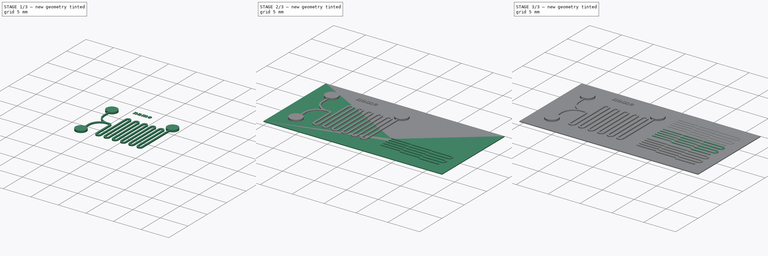
[diagram: build sequence overview — one tinted view per stage of 3, left to right]
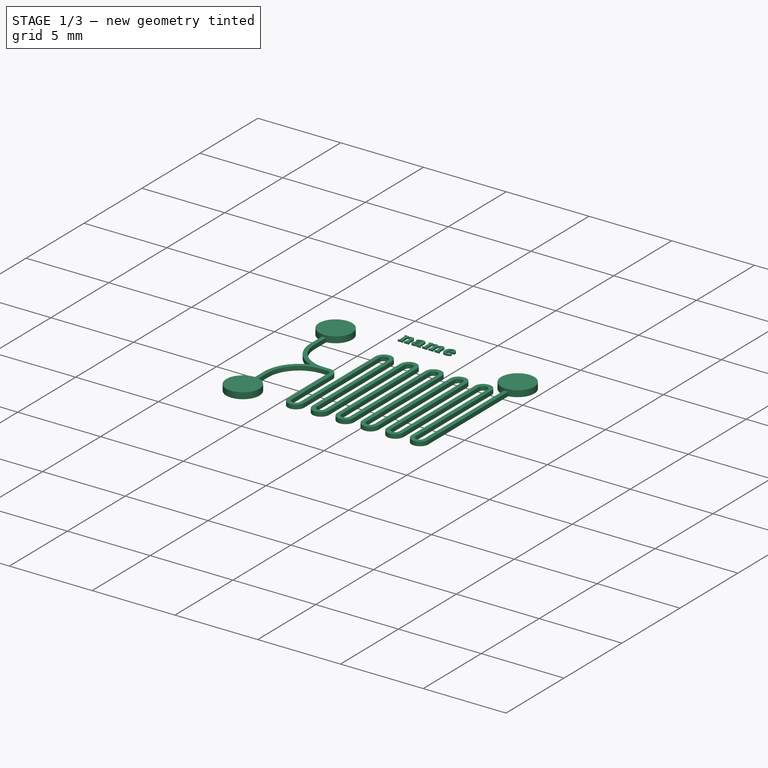
[diagram: stage 1 of 3 — iso view after this stage's code; geometry added in this stage tinted green]
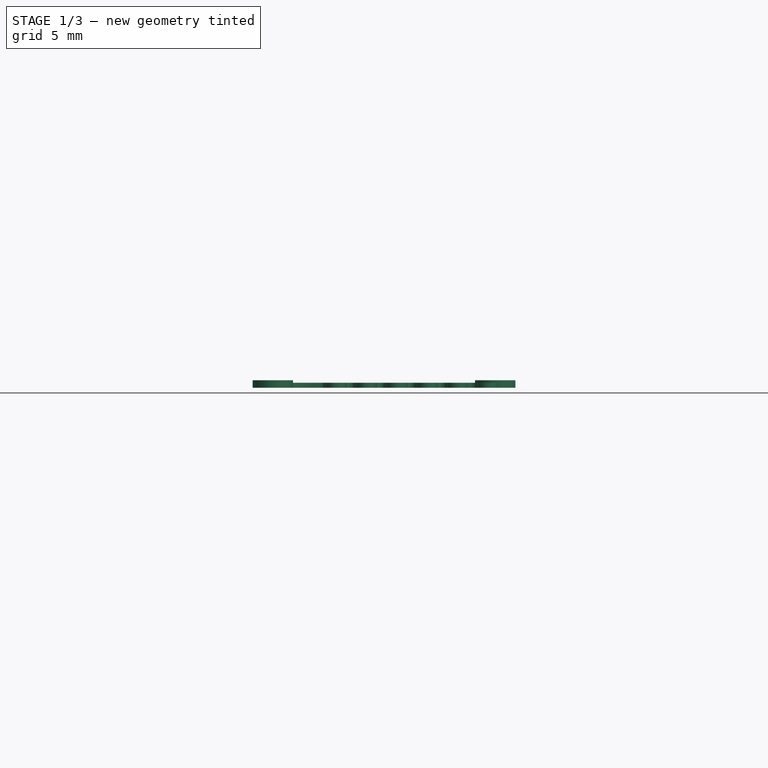
[diagram: stage 1 of 3 — front view after this stage's code; geometry added in this stage tinted green]
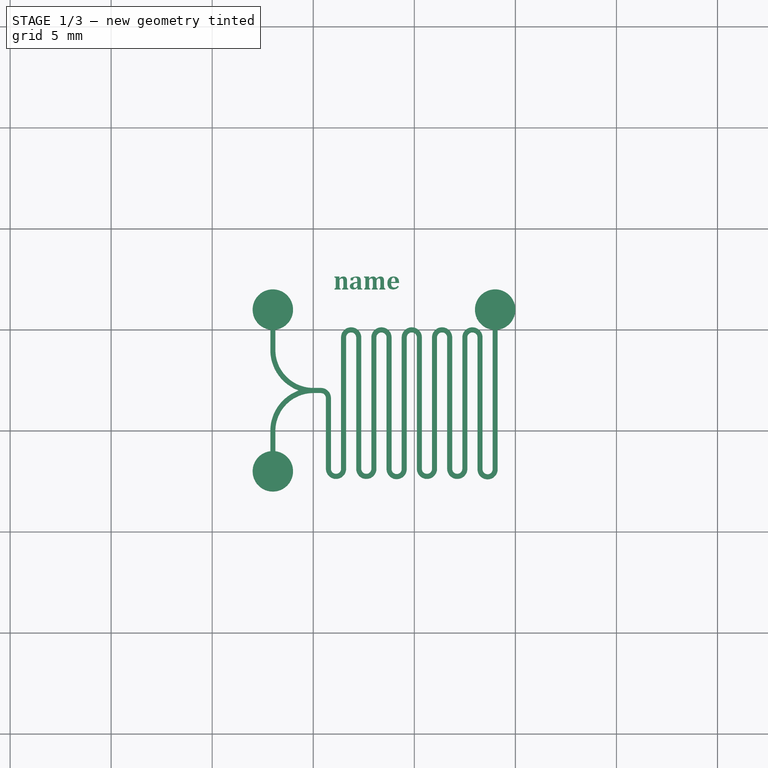
[diagram: stage 1 of 3 — top view after this stage's code; geometry added in this stage tinted green]
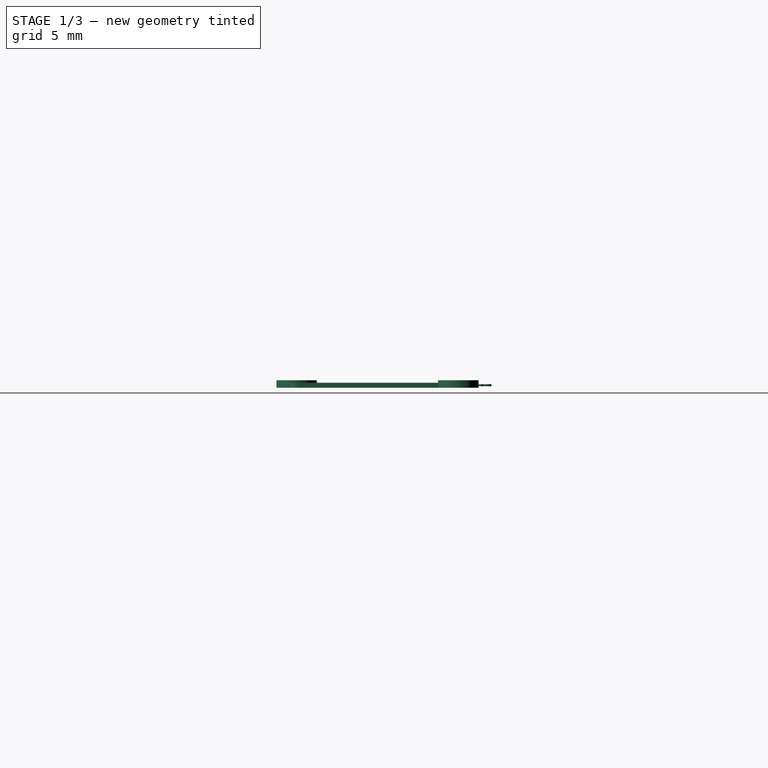
[diagram: stage 1 of 3 — right view after this stage's code; geometry added in this stage tinted green]
FCSTD DOCUMENT  (FreeCAD 0.16R6706 (Git))
Label: Maskless_Small_NoWalls_FreeCAD_ExampleA_v1
License: All rights reserved
LicenseURL: http://en.wikipedia.org/wiki/All_rights_reserved
objects: Sketcher::SketchObject×5, PartDesign::Pad×5, Part::Box×1, Part::Part2DObjectPython×1, Part::Extrusion×1, Part::MultiFuse×1
note: 19 computed .brp shape members not serialized (recipe doc carries the construction recipe); baked Part::Feature solids carry a one-line shape summary decoded from their .brp

FEATURE [Sketcher::SketchObject] Sketch008
  Placement = pos=(0,0,0.125) rot=(0,0,1;0rad)
  sketch-geometry (3):
    g0: Circle CenterX=3 CenterY=3 CenterZ=0 NormalX=0 NormalY=0 NormalZ=1 Radius=1
    g1: Circle CenterX=3 CenterY=11 CenterZ=0 NormalX=0 NormalY=0 NormalZ=1 Radius=1
    g2: Circle CenterX=14 CenterY=11 CenterZ=0 NormalX=0 NormalY=0 NormalZ=1 Radius=1
  constraints (9):
    c: DistanceX(g1,g0) = 0
    c: DistanceY(g0,g1) = 8
    c: DistanceX(g1,g2) = 11
    c: DistanceY(g1,g2) = 0
    c: DistanceY(g0) = 3
    c: DistanceX(g0) = 3
    c: Radius(g0) = 1
    c: Equal(g0,g1)
    c: Equal(g0,g2)
FEATURE [PartDesign::Pad] Pad008  label="Microfluidic Ports"
  Length = 0.3
  Length2 = 100
  Placement = pos=(0,0,0.125) rot=(0,0,1;0rad)
  Sketch = -> Sketch008
  Type = 0
FEATURE [Part::Part2DObjectPython] ShapeString  # Draft 2D object (typed FeaturePython)
  FontFile = <userpath>/ownCloud/3D Print Files/Standard_Prints/Eiffel_Tower/SLA Optimized (Form 1+)/CAMBRIAB.TTF
  Placement = pos=(6,12,0.125) rot=(0,0,1;0rad)
  Size = 1
  String = name
  Tracking = 0
FEATURE [Part::Extrusion] Extrude001  label="Name"
  Base = -> ShapeString
  Dir = (0,0,0.1)
  Solid = false
FEATURE [Sketcher::SketchObject] Sketch009
  Placement = pos=(0,0,0.05) rot=(0,0,1;0rad)
  sketch-geometry (62):
    g0: ArcOfCircle CenterX=3 CenterY=11 CenterZ=0 NormalX=0 NormalY=0 NormalZ=1 Radius=1 StartAngle=4.83772 EndAngle=10.8702
    g1: ArcOfCircle CenterX=3 CenterY=3 CenterZ=0 NormalX=0 NormalY=0 NormalZ=1 Radius=1 StartAngle=1.69612 EndAngle=7.72865
    g2: LineSegment StartX=2.875 StartY=10.0078 StartZ=0 EndX=2.875 EndY=9.00784 EndZ=0
    g3: LineSegment StartX=3.125 StartY=10.0078 StartZ=0 EndX=3.125 EndY=9.00784 EndZ=0
    g4: LineSegment StartX=3.125 StartY=3.99216 StartZ=0 EndX=3.125 EndY=4.99216 EndZ=0
    g5: LineSegment StartX=2.875 StartY=3.99216 StartZ=0 EndX=2.875 EndY=4.99216 EndZ=0
    g6: LineSegment StartX=5.00784 StartY=7.125 StartZ=0 EndX=5.375 EndY=7.125 EndZ=0
    g7: LineSegment StartX=5.00784 StartY=6.875 StartZ=0 EndX=5.375 EndY=6.875 EndZ=0
    g8: ArcOfCircle CenterX=5.00784 CenterY=9.00784 CenterZ=0 NormalX=0 NormalY=0 NormalZ=1 Radius=2.13284 StartAngle=3.14159 EndAngle=4.36833
    g9: ArcOfCircle CenterX=5.00784 CenterY=9.00784 CenterZ=0 NormalX=0 NormalY=0 NormalZ=1 Radius=1.88284 StartAngle=3.14159 EndAngle=4.71239
    g10: ArcOfCircle CenterX=5.00784 CenterY=4.99216 CenterZ=0 NormalX=0 NormalY=0 NormalZ=1 Radius=2.13284 StartAngle=1.91486 EndAngle=3.14159
    g11: ArcOfCircle CenterX=5.00784 CenterY=4.99216 CenterZ=0 NormalX=0 NormalY=0 NormalZ=1 Radius=1.88284 StartAngle=1.5708 EndAngle=3.14159
    g12: LineSegment StartX=5.875 StartY=6.625 StartZ=0 EndX=5.875 EndY=3.125 EndZ=0
    g13: LineSegment StartX=5.625 StartY=6.625 StartZ=0 EndX=5.625 EndY=3.125 EndZ=0
    g14: LineSegment StartX=6.625 StartY=3.125 StartZ=0 EndX=6.625 EndY=9.625 EndZ=0
    g15: LineSegment StartX=6.375 StartY=3.125 StartZ=0 EndX=6.375 EndY=9.625 EndZ=0
    g16: ArcOfCircle CenterX=5.375 CenterY=6.625 CenterZ=0 NormalX=0 NormalY=0 NormalZ=1 Radius=0.25 StartAngle=0 EndAngle=1.5708
    g17: ArcOfCircle CenterX=5.375 CenterY=6.625 CenterZ=0 NormalX=0 NormalY=0 NormalZ=1 Radius=0.5 StartAngle=0 EndAngle=1.5708
    g18: LineSegment [constr] StartX=3.94873 StartY=6.84345 StartZ=0 EndX=4.07287 EndY=6.62645 EndZ=0
    g19: ArcOfCircle CenterX=6.125 CenterY=3.125 CenterZ=0 NormalX=0 NormalY=0 NormalZ=1 Radius=0.5 StartAngle=3.14159 EndAngle=6.28319
    g20: ArcOfCircle CenterX=6.125 CenterY=3.125 CenterZ=0 NormalX=0 NormalY=0 NormalZ=1 Radius=0.25 StartAngle=3.14159 EndAngle=6.28319
    g21: LineSegment StartX=7.125 StartY=9.625 StartZ=0 EndX=7.125 EndY=3.125 EndZ=0
    g22: LineSegment StartX=7.375 StartY=9.625 StartZ=0 EndX=7.375 EndY=3.125 EndZ=0
    g23: ArcOfCircle CenterX=6.875 CenterY=9.625 CenterZ=0 NormalX=0 NormalY=0 NormalZ=1 Radius=0.5 StartAngle=0 EndAngle=3.14159
    g24: ArcOfCircle CenterX=6.875 CenterY=9.625 CenterZ=0 NormalX=0 NormalY=0 NormalZ=1 Radius=0.25 StartAngle=1e-12 EndAngle=3.14159
    g25: LineSegment StartX=7.875 StartY=3.125 StartZ=0 EndX=7.875 EndY=9.625 EndZ=0
    g26: LineSegment StartX=8.125 StartY=3.125 StartZ=0 EndX=8.125 EndY=9.625 EndZ=0
    g27: ArcOfCircle CenterX=7.625 CenterY=3.125 CenterZ=0 NormalX=0 NormalY=0 NormalZ=1 Radius=0.25 StartAngle=3.14159 EndAngle=6.28319
    g28: ArcOfCircle CenterX=7.625 CenterY=3.125 CenterZ=0 NormalX=0 NormalY=0 NormalZ=1 Radius=0.5 StartAngle=3.14159 EndAngle=6.28319
    g29: ArcOfCircle CenterX=8.375 CenterY=9.625 CenterZ=0 NormalX=0 NormalY=0 NormalZ=1 Radius=0.25 StartAngle=6.28319 EndAngle=9.42478
    g30: ArcOfCircle CenterX=8.375 CenterY=9.625 CenterZ=0 NormalX=0 NormalY=0 NormalZ=1 Radius=0.5 StartAngle=6.28319 EndAngle=9.42478
    g31: LineSegment StartX=8.625 StartY=9.625 StartZ=0 EndX=8.625 EndY=3.125 EndZ=0
    g32: LineSegment StartX=8.875 StartY=9.625 StartZ=0 EndX=8.875 EndY=3.125 EndZ=0
    g33: ArcOfCircle CenterX=9.125 CenterY=3.11246 CenterZ=0 NormalX=0 NormalY=0 NormalZ=1 Radius=0.250314 StartAngle=3.09147 EndAngle=6.33331
    g34: ArcOfCircle CenterX=9.125 CenterY=3.11246 CenterZ=0 NormalX=0 NormalY=0 NormalZ=1 Radius=0.500157 StartAngle=3.11651 EndAngle=6.30826
    g35: LineSegment StartX=9.375 StartY=3.125 StartZ=0 EndX=9.375 EndY=9.625 EndZ=0
    g36: LineSegment StartX=9.625 StartY=3.125 StartZ=0 EndX=9.625 EndY=9.625 EndZ=0
    g37: ArcOfCircle CenterX=9.875 CenterY=9.625 CenterZ=0 NormalX=0 NormalY=0 NormalZ=1 Radius=0.25 StartAngle=0 EndAngle=3.14159
    g38: ArcOfCircle CenterX=9.875 CenterY=9.625 CenterZ=0 NormalX=0 NormalY=0 NormalZ=1 Radius=0.5 StartAngle=0 EndAngle=3.14159
    g39: LineSegment StartX=10.125 StartY=9.625 StartZ=0 EndX=10.125 EndY=3.125 EndZ=0
    g40: LineSegment StartX=10.375 StartY=9.625 StartZ=0 EndX=10.375 EndY=3.125 EndZ=0
    g41: ArcOfCircle CenterX=10.625 CenterY=3.125 CenterZ=0 NormalX=0 NormalY=0 NormalZ=1 Radius=0.25 StartAngle=3.14159 EndAngle=6.28319
    g42: ArcOfCircle CenterX=10.625 CenterY=3.125 CenterZ=0 NormalX=0 NormalY=0 NormalZ=1 Radius=0.5 StartAngle=3.14159 EndAngle=6.28319
    g43: LineSegment StartX=11.125 StartY=3.125 StartZ=0 EndX=11.125 EndY=9.625 EndZ=0
    g44: LineSegment StartX=10.875 StartY=3.125 StartZ=0 EndX=10.875 EndY=9.625 EndZ=0
    g45: ArcOfCircle CenterX=11.375 CenterY=9.625 CenterZ=0 NormalX=0 NormalY=0 NormalZ=1 Radius=0.25 StartAngle=0 EndAngle=3.14159
    g46: ArcOfCircle CenterX=11.375 CenterY=9.625 CenterZ=0 NormalX=0 NormalY=0 NormalZ=1 Radius=0.5 StartAngle=0 EndAngle=3.14159
    g47: LineSegment StartX=11.625 StartY=9.625 StartZ=0 EndX=11.625 EndY=3.125 EndZ=0
    g48: LineSegment StartX=11.875 StartY=9.625 StartZ=0 EndX=11.875 EndY=3.125 EndZ=0
    g49: ArcOfCircle CenterX=12.125 CenterY=3.125 CenterZ=0 NormalX=0 NormalY=0 NormalZ=1 Radius=0.25 StartAngle=3.14159 EndAngle=6.28319
    g50: ArcOfCircle CenterX=12.125 CenterY=3.125 CenterZ=0 NormalX=0 NormalY=0 NormalZ=1 Radius=0.5 StartAngle=3.14159 EndAngle=6.28319
    g51: LineSegment StartX=12.375 StartY=3.125 StartZ=0 EndX=12.375 EndY=9.625 EndZ=0
    g52: LineSegment StartX=12.625 StartY=3.125 StartZ=0 EndX=12.625 EndY=9.625 EndZ=0
    g53: ArcOfCircle CenterX=12.875 CenterY=9.625 CenterZ=0 NormalX=0 NormalY=0 NormalZ=1 Radius=0.25 StartAngle=0 EndAngle=3.14159
    g54: ArcOfCircle CenterX=12.875 CenterY=9.625 CenterZ=0 NormalX=0 NormalY=0 NormalZ=1 Radius=0.5 StartAngle=0 EndAngle=3.14159
    g55: LineSegment StartX=13.125 StartY=9.625 StartZ=0 EndX=13.125 EndY=3.10417 EndZ=0
    g56: LineSegment StartX=13.375 StartY=9.625 StartZ=0 EndX=13.375 EndY=3.10417 EndZ=0
    g57: ArcOfCircle CenterX=13.625 CenterY=3.10417 CenterZ=0 NormalX=0 NormalY=0 NormalZ=1 Radius=0.25 StartAngle=3.14159 EndAngle=6.28319
    g58: ArcOfCircle CenterX=13.625 CenterY=3.10417 CenterZ=0 NormalX=0 NormalY=0 NormalZ=1 Radius=0.5 StartAngle=3.14159 EndAngle=6.28319
    g59: LineSegment StartX=13.875 StartY=3.10417 StartZ=0 EndX=13.875 EndY=10.0078 EndZ=0
    g60: LineSegment StartX=14.125 StartY=3.10417 StartZ=0 EndX=14.125 EndY=10.0078 EndZ=0
    g61: ArcOfCircle CenterX=14 CenterY=11 CenterZ=0 NormalX=0 NormalY=0 NormalZ=1 Radius=1 StartAngle=4.83772 EndAngle=10.8702
  constraints (185):
    c: DistanceX(g0,g0) = 0.25
    c: DistanceX(g1,g1) = 0.25
    c: DistanceX(g0,g1) = 0
    c: DistanceX(g25,g26) = 0.25
    c: Radius(g0) = 1
    c: Equal(g0,g1)
    c: DistanceX(g1,g0) = 0
    c: Coincident(g2,g0)
    c: Coincident(g3,g0)
    c: Coincident(g4,g1)
    c: Coincident(g5,g1)
    c: Tangent(g2,g8) = -1.5708
    c: Tangent(g3,g9) = -1.5708
    c: Tangent(g6,g9) = -1.5708
    c: Tangent(g5,g10) = 1.5708
    c: Tangent(g4,g11) = 1.5708
    c: Tangent(g7,g11) = 1.5708
    c: Coincident(g10,g8)
    c: Horizontal(g7)
    c: Horizontal(g6)
    c: Parallel(g2,g3)
    c: Parallel(g5,g4)
    c: Vertical(g5)
    c: Vertical(g2)
    c: Equal(g7,g6)
    c: DistanceX(g1,g1) = 0.125
    c: DistanceY(g1) = 3
    c: DistanceX(g1) = 3
    c: DistanceY(g5,g5) = 1
    c: Equal(g2,g5)
    c: DistanceY(g1,g0) = 8
    c: DistanceY(g1,g8) = 4
    c: Equal(g5,g4)
    c: Equal(g3,g2)
    c: Tangent(g7,g16) = 1.5708
    c: Tangent(g13,g16) = 1.5708
    c: Tangent(g6,g17) = 1.5708
    c: Tangent(g12,g17) = 1.5708
    c: DistanceY(g7,g6) = 0.25
    c: DistanceY(g7,g8) = 0.125
    c: DistanceY(g13,g12) = 0
    c: DistanceX(g13,g12) = 0.25
    c: PointOnObject(g18,g10)
    c: PointOnObject(g18,g11)
    c: Perpendicular(g10,g18)
    c: Perpendicular(g11,g18)
    c: Tangent(g13,g19) = -1.5708
    c: Tangent(g14,g19) = -1.5708
    c: Tangent(g12,g20) = -1.5708
    c: Tangent(g15,g20) = -1.5708
    c: Tangent(g15,g23) = 1.5708
    c: Tangent(g22,g23) = 1.5708
    c: Tangent(g14,g24) = 1.5708
    c: Tangent(g21,g24) = 1.5708
    c: Tangent(g22,g27) = -1.5708
    c: Tangent(g25,g27) = -1.5708
    c: Tangent(g21,g28) = -1.5708
    c: Tangent(g26,g28) = -1.5708
    c: Vertical(g26)
    c: Vertical(g22)
    c: Vertical(g14)
    c: Vertical(g12)
    c: DistanceY(g13,g12) = 0
    c: DistanceX(g15,g14) = 0.25
    c: DistanceY(g15,g14) = 0
    c: DistanceY(g14,g15) = 0
    c: DistanceY(g21,g22) = 0
    c: DistanceX(g21,g22) = 0.25
    c: DistanceY(g22,g21) = 0
    c: DistanceY(g25,g26) = 0
    c: DistanceY(g13,g13) = 3.5
    c: DistanceY(g14,g14) = 6.5
    c: DistanceY(g22,g22) = 6.5
    c: DistanceX(g12,g15) = 0.5
    c: DistanceX(g14,g21) = 0.5
    c: DistanceX(g22,g25) = 0.5
    c: DistanceY(g13,g7) = 0.25
    c: DistanceX(g18) = 3.94873
    c: DistanceY(g26,g25) = 0
    c: DistanceY(g22,g25) = 0
    c: Coincident(g30,g29)
    c: Coincident(g30,g25)
    c: Coincident(g29,g26)
    c: DistanceY(g29,g30) = 0
    c: DistanceX(g29,g30) = 0.25
    c: DistanceX(g26,g29) = 0.5
    c: Coincident(g31,g29)
    c: Vertical(g31)
    c: Coincident(g32,g30)
    c: Vertical(g32)
    c: DistanceY(g31,g32) = 0
    c: DistanceY(g31,g26) = 0
    c: Coincident(g33,g32)
    c: Coincident(g34,g33)
    c: Coincident(g34,g31)
    c: DistanceY(g33,g32) = 0
    c: DistanceY(g34,g33) = 0
    c: DistanceX(g32,g33) = 0.5
    c: Coincident(g35,g33)
    c: Vertical(g35)
    c: Coincident(g36,g34)
    c: Vertical(g36)
    c: DistanceY(g36,g35) = 0
    c: DistanceY(g30,g35) = 0
    c: Coincident(g37,g36)
    c: Coincident(g38,g37)
    c: Coincident(g38,g35)
    c: DistanceY(g36,g37) = 0
    c: DistanceY(g37,g37) = 0
    c: DistanceY(g37,g38) = 0
    c: DistanceX(g36,g37) = 0.5
    c: Coincident(g39,g37)
    c: Vertical(g39)
    c: Coincident(g40,g38)
    c: Vertical(g40)
    c: DistanceY(g40,g39) = 0
    c: Coincident(g41,g40)
    c: Coincident(g42,g41)
    c: Coincident(g42,g39)
    c: DistanceY(g41,g42) = 0
    c: DistanceY(g41,g41) = 0
    c: DistanceY(g41,g40) = 0
    c: DistanceX(g40,g41) = 0.5
    c: DistanceY(g39,g34) = 0
    c: Coincident(g43,g42)
    c: Vertical(g43)
    c: Coincident(g44,g41)
    c: Vertical(g44)
    c: DistanceY(g43,g44) = 0
    c: DistanceY(g38,g44) = 0
    c: Coincident(g45,g43)
    c: Coincident(g46,g45)
    c: Coincident(g46,g44)
    c: DistanceY(g45,g43) = 0
    c: DistanceY(g45,g45) = 0
    c: DistanceY(g46,g45) = 0
    c: DistanceX(g43,g45) = 0.5
    c: Coincident(g47,g45)
    c: Vertical(g47)
    c: Coincident(g48,g46)
    c: Vertical(g48)
    c: DistanceY(g47,g48) = 0
    c: DistanceY(g47,g42) = 0
    c: Coincident(g49,g48)
    c: Coincident(g50,g49)
    c: Coincident(g50,g47)
    c: DistanceY(g50,g49) = 0
    c: DistanceY(g49,g49) = 0
    c: DistanceY(g49,g48) = 0
    c: DistanceX(g48,g49) = 0.5
    c: Coincident(g51,g49)
    c: Vertical(g51)
    c: Coincident(g52,g50)
    c: Vertical(g52)
    c: DistanceY(g52,g51) = 0
    c: DistanceY(g51,g46) = 0
    c: Coincident(g53,g52)
    c: Coincident(g54,g53)
    c: Coincident(g54,g51)
    c: DistanceY(g53,g52) = 0
    c: DistanceY(g53,g53) = 0
    c: DistanceY(g53,g54) = 0
    c: DistanceX(g52,g53) = 0.5
    c: Coincident(g55,g53)
    c: Vertical(g55)
    c: Coincident(g56,g54)
    c: Vertical(g56)
    c: DistanceY(g56,g55) = 0
    c: Coincident(g57,g56)
    c: Coincident(g58,g57)
    c: Coincident(g58,g55)
    c: DistanceY(g58,g57) = 0
    c: DistanceY(g57,g56) = 0
    c: DistanceY(g57,g57) = 0
    c: DistanceX(g56,g57) = 0.5
    c: Coincident(g59,g57)
    c: Vertical(g59)
    c: Coincident(g60,g58)
    c: Vertical(g60)
    c: DistanceY(g60,g59) = 0
    c: Coincident(g61,g59)
    c: Coincident(g61,g60)
    c: DistanceY(g0,g61) = 0
    c: DistanceX(g0,g61) = 11
    c: Equal(g61,g0)
FEATURE [PartDesign::Pad] Pad009  label="Microfluidic Design"
  Length = 0.25
  Length2 = 100
  Placement = pos=(0,0,0.05) rot=(0,0,1;0rad)
  Sketch = -> Sketch009
  Type = 0
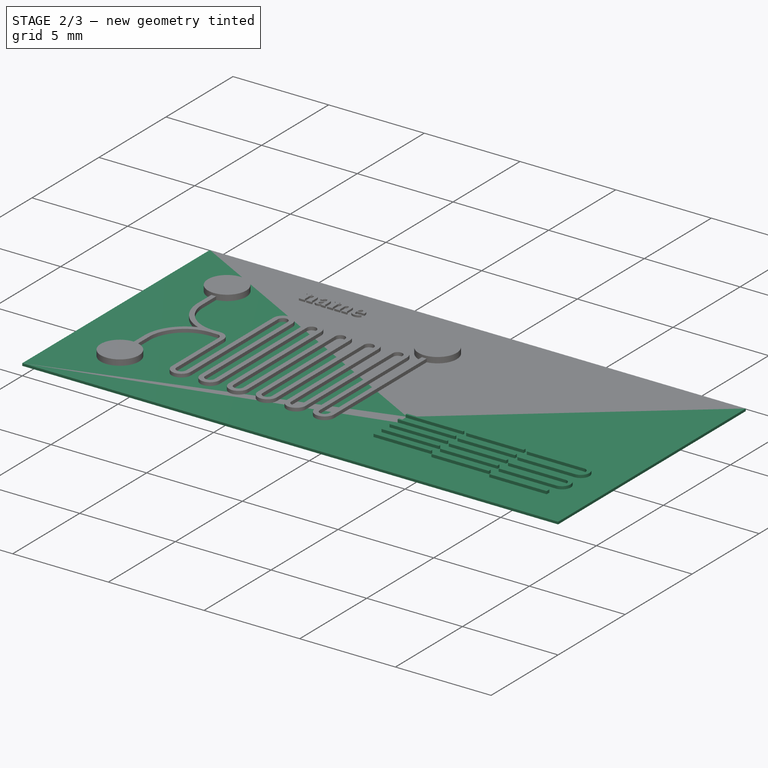
[diagram: stage 2 of 3 — iso view after this stage's code; geometry added in this stage tinted green]
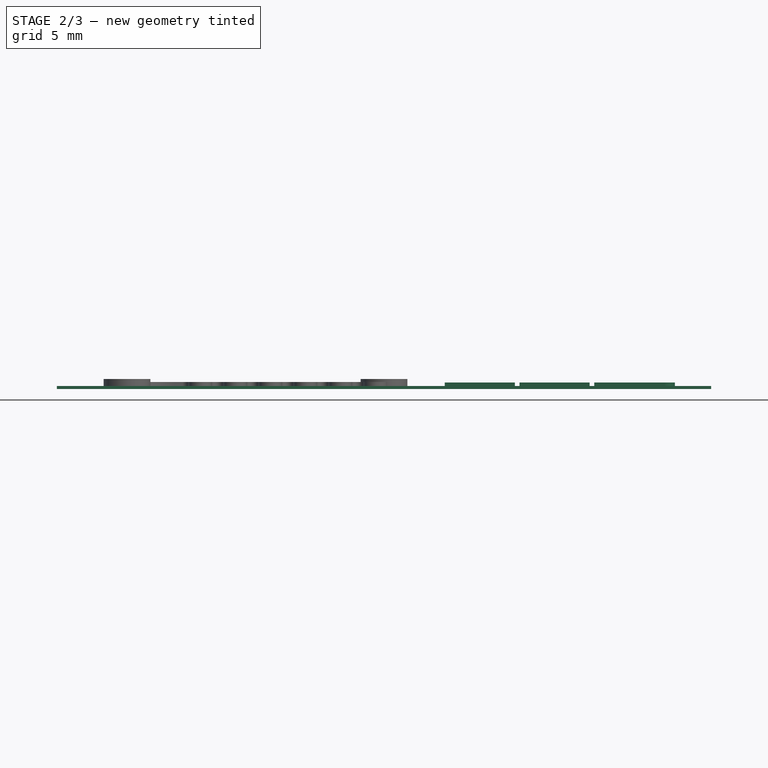
[diagram: stage 2 of 3 — front view after this stage's code; geometry added in this stage tinted green]
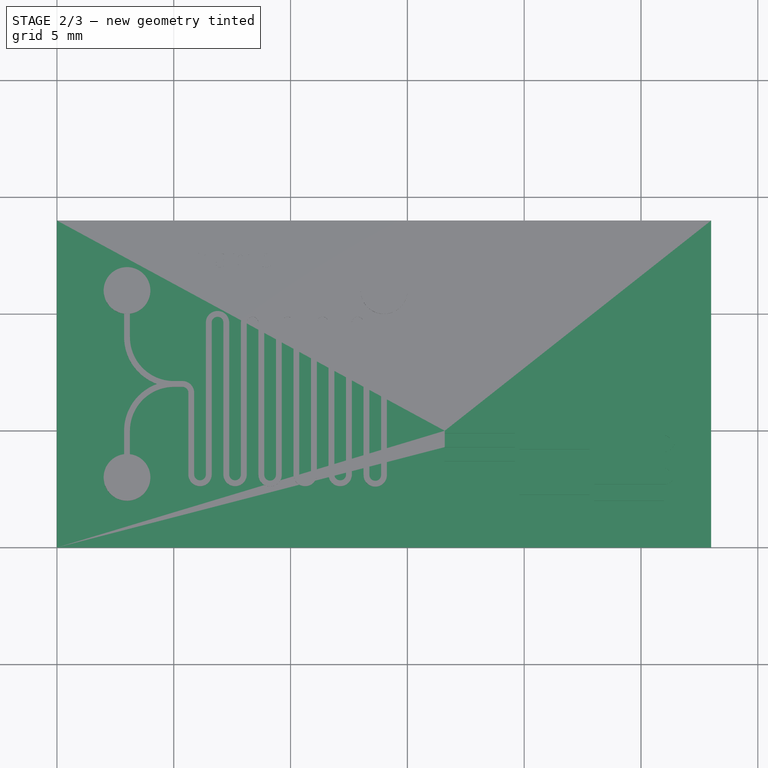
[diagram: stage 2 of 3 — top view after this stage's code; geometry added in this stage tinted green]
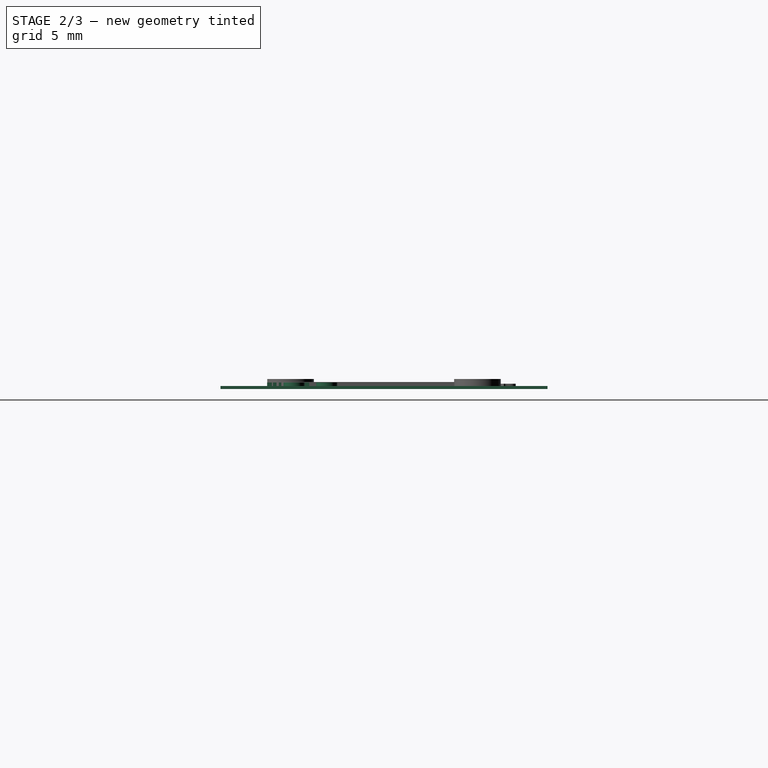
[diagram: stage 2 of 3 — right view after this stage's code; geometry added in this stage tinted green]
FEATURE [Part::Box] Box  label="Base"
  Height = 0.125
  Length = 28
  Width = 14
FEATURE [PartDesign::Pad] Pad002  label="Test Lines 150um tall"
  Length = 0.15
  Length2 = 100
  Sketch = -> Sketch002
  Type = 0
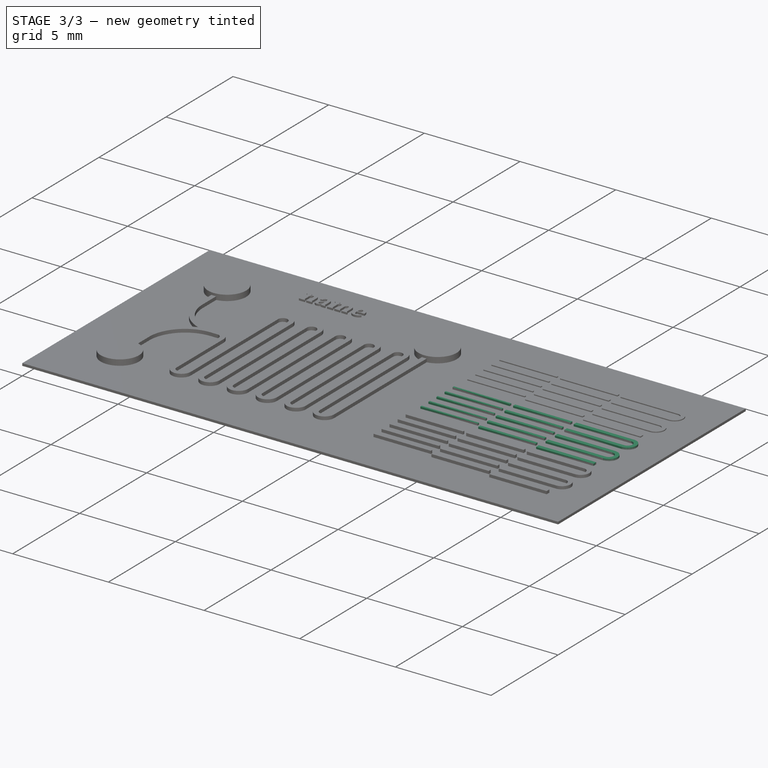
[diagram: stage 3 of 3 — iso view after this stage's code; geometry added in this stage tinted green]
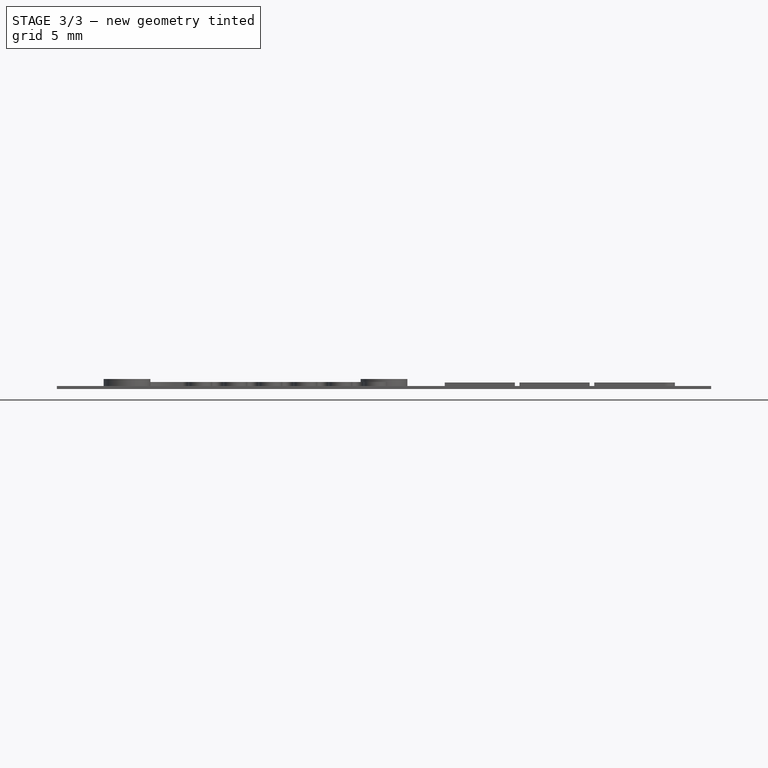
[diagram: stage 3 of 3 — front view after this stage's code; geometry added in this stage tinted green]
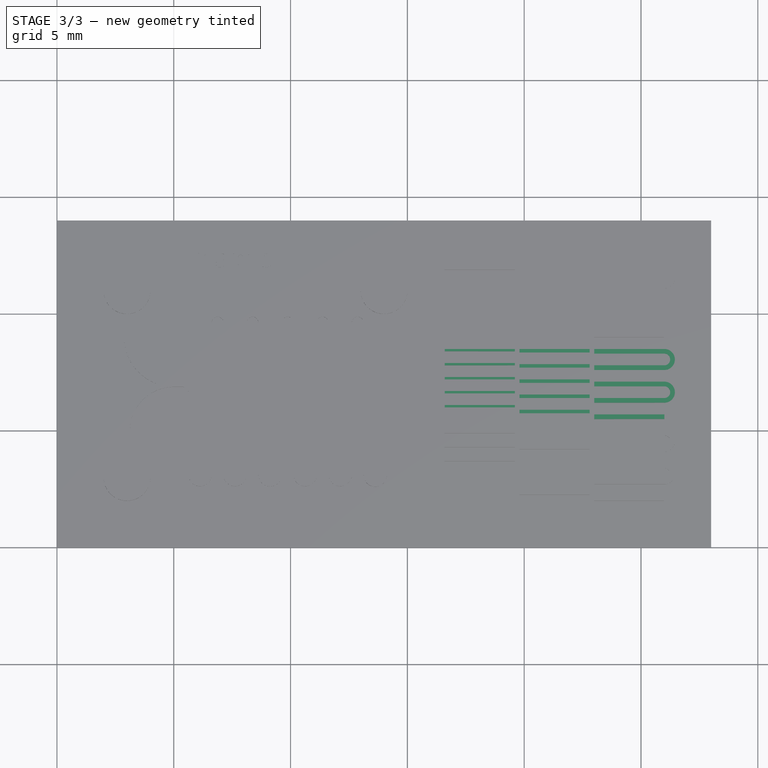
[diagram: stage 3 of 3 — top view after this stage's code; geometry added in this stage tinted green]
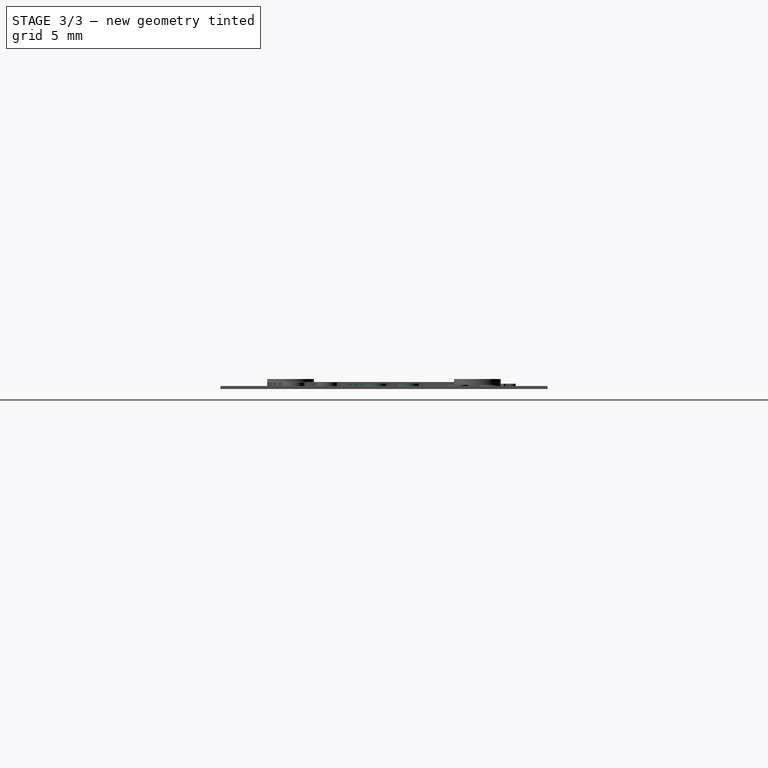
[diagram: stage 3 of 3 — right view after this stage's code; geometry added in this stage tinted green]
FEATURE [Sketcher::SketchObject] Sketch
  Placement = pos=(0,0,0.125) rot=(0,0,1;0rad)
  Support = -> Box [Face6]
  sketch-geometry (60):
    g0: LineSegment StartX=16.6 StartY=11.9 StartZ=0 EndX=19.6 EndY=11.9 EndZ=0
    g1: LineSegment StartX=19.6 StartY=11.9 StartZ=0 EndX=19.6 EndY=12 EndZ=0
    g2: LineSegment StartX=19.6 StartY=12 StartZ=0 EndX=16.6 EndY=12 EndZ=0
    g3: LineSegment StartX=16.6 StartY=12 StartZ=0 EndX=16.6 EndY=11.9 EndZ=0
    g4: LineSegment StartX=16.6 StartY=11.4 StartZ=0 EndX=19.6 EndY=11.4 EndZ=0
    g5: LineSegment StartX=19.6 StartY=11.4 StartZ=0 EndX=19.6 EndY=11.3 EndZ=0
    g6: LineSegment StartX=19.6 StartY=11.3 StartZ=0 EndX=16.6 EndY=11.3 EndZ=0
    g7: LineSegment StartX=16.6 StartY=11.3 StartZ=0 EndX=16.6 EndY=11.4 EndZ=0
    g8: LineSegment StartX=16.6 StartY=10.8 StartZ=0 EndX=19.6 EndY=10.8 EndZ=0
    g9: LineSegment StartX=19.6 StartY=10.8 StartZ=0 EndX=19.6 EndY=10.7 EndZ=0
    g10: LineSegment StartX=19.6 StartY=10.7 StartZ=0 EndX=16.6 EndY=10.7 EndZ=0
    g11: LineSegment StartX=16.6 StartY=10.7 StartZ=0 EndX=16.6 EndY=10.8 EndZ=0
    g12: LineSegment StartX=16.6 StartY=10.2 StartZ=0 EndX=19.6 EndY=10.2 EndZ=0
    g13: LineSegment StartX=19.6 StartY=10.2 StartZ=0 EndX=19.6 EndY=10.1 EndZ=0
    g14: LineSegment StartX=19.6 StartY=10.1 StartZ=0 EndX=16.6 EndY=10.1 EndZ=0
    g15: LineSegment StartX=16.6 StartY=10.1 StartZ=0 EndX=16.6 EndY=10.2 EndZ=0
    g16: LineSegment StartX=16.6 StartY=9.6 StartZ=0 EndX=19.6 EndY=9.6 EndZ=0
    g17: LineSegment StartX=19.6 StartY=9.6 StartZ=0 EndX=19.6 EndY=9.5 EndZ=0
    g18: LineSegment StartX=19.6 StartY=9.5 StartZ=0 EndX=16.6 EndY=9.5 EndZ=0
    g19: LineSegment StartX=16.6 StartY=9.5 StartZ=0 EndX=16.6 EndY=9.6 EndZ=0
    g20: LineSegment StartX=19.8 StartY=12 StartZ=0 EndX=22.8 EndY=12 EndZ=0
    g21: LineSegment StartX=22.8 StartY=12 StartZ=0 EndX=22.8 EndY=11.85 EndZ=0
    g22: LineSegment StartX=22.8 StartY=11.85 StartZ=0 EndX=19.8 EndY=11.85 EndZ=0
    g23: LineSegment StartX=19.8 StartY=11.85 StartZ=0 EndX=19.8 EndY=12 EndZ=0
    g24: LineSegment StartX=19.8 StartY=11.35 StartZ=0 EndX=22.8 EndY=11.35 EndZ=0
    g25: LineSegment StartX=22.8 StartY=11.35 StartZ=0 EndX=22.8 EndY=11.2 EndZ=0
    g26: LineSegment StartX=22.8 StartY=11.2 StartZ=0 EndX=19.8 EndY=11.2 EndZ=0
    g27: LineSegment StartX=19.8 StartY=11.2 StartZ=0 EndX=19.8 EndY=11.35 EndZ=0
    g28: LineSegment StartX=19.8 StartY=10.7 StartZ=0 EndX=22.8 EndY=10.7 EndZ=0
    g29: LineSegment StartX=22.8 StartY=10.7 StartZ=0 EndX=22.8 EndY=10.55 EndZ=0
    g30: LineSegment StartX=22.8 StartY=10.55 StartZ=0 EndX=19.8 EndY=10.55 EndZ=0
    g31: LineSegment StartX=19.8 StartY=10.55 StartZ=0 EndX=19.8 EndY=10.7 EndZ=0
    g32: LineSegment StartX=23 StartY=11.8 StartZ=0 EndX=26 EndY=11.8 EndZ=0
    g33: LineSegment StartX=26 StartY=12 StartZ=0 EndX=23 EndY=12 EndZ=0
    g34: LineSegment StartX=23 StartY=12 StartZ=0 EndX=23 EndY=11.8 EndZ=0
    g35: LineSegment StartX=23 StartY=11.1 StartZ=0 EndX=26 EndY=11.1 EndZ=0
    g36: LineSegment StartX=26 StartY=11.3 StartZ=0 EndX=23 EndY=11.3 EndZ=0
    g37: LineSegment StartX=23 StartY=11.3 StartZ=0 EndX=23 EndY=11.1 EndZ=0
    g38: LineSegment StartX=23 StartY=10.4 StartZ=0 EndX=26 EndY=10.4 EndZ=0
    g39: LineSegment StartX=26 StartY=10.6 StartZ=0 EndX=23 EndY=10.6 EndZ=0
    g40: LineSegment StartX=23 StartY=10.6 StartZ=0 EndX=23 EndY=10.4 EndZ=0
    g41: LineSegment StartX=23 StartY=9.7 StartZ=0 EndX=26 EndY=9.7 EndZ=0
    g42: LineSegment StartX=26 StartY=9.9 StartZ=0 EndX=23 EndY=9.9 EndZ=0
    g43: LineSegment StartX=23 StartY=9.9 StartZ=0 EndX=23 EndY=9.7 EndZ=0
    g44: LineSegment StartX=23 StartY=9 StartZ=0 EndX=26 EndY=9 EndZ=0
    g45: LineSegment StartX=26 StartY=9 StartZ=0 EndX=26 EndY=9.2 EndZ=0
    g46: LineSegment StartX=26 StartY=9.2 StartZ=0 EndX=23 EndY=9.2 EndZ=0
    g47: LineSegment StartX=23 StartY=9.2 StartZ=0 EndX=23 EndY=9 EndZ=0
    g48: LineSegment StartX=19.8 StartY=10.05 StartZ=0 EndX=22.8 EndY=10.05 EndZ=0
    g49: LineSegment StartX=22.8 StartY=10.05 StartZ=0 EndX=22.8 EndY=9.9 EndZ=0
    g50: LineSegment StartX=22.8 StartY=9.9 StartZ=0 EndX=19.8 EndY=9.9 EndZ=0
    g51: LineSegment StartX=19.8 StartY=9.9 StartZ=0 EndX=19.8 EndY=10.05 EndZ=0
    g52: LineSegment StartX=19.8 StartY=9.4 StartZ=0 EndX=22.8 EndY=9.4 EndZ=0
    g53: LineSegment StartX=22.8 StartY=9.4 StartZ=0 EndX=22.8 EndY=9.25 EndZ=0
    g54: LineSegment StartX=22.8 StartY=9.25 StartZ=0 EndX=19.8 EndY=9.25 EndZ=0
    g55: LineSegment StartX=19.8 StartY=9.25 StartZ=0 EndX=19.8 EndY=9.4 EndZ=0
    g56: ArcOfCircle CenterX=26 CenterY=11.55 CenterZ=0 NormalX=0 NormalY=0 NormalZ=1 Radius=0.25 StartAngle=4.71239 EndAngle=7.85398
    g57: ArcOfCircle CenterX=26 CenterY=11.55 CenterZ=0 NormalX=0 NormalY=0 NormalZ=1 Radius=0.45 StartAngle=4.71239 EndAngle=7.85398
    g58: ArcOfCircle CenterX=26 CenterY=10.15 CenterZ=0 NormalX=0 NormalY=0 NormalZ=1 Radius=0.25 StartAngle=4.71239 EndAngle=7.85398
    g59: ArcOfCircle CenterX=26 CenterY=10.15 CenterZ=0 NormalX=0 NormalY=0 NormalZ=1 Radius=0.45 StartAngle=4.71239 EndAngle=7.85398
  constraints (184):
    c: Coincident(g0,g1)
    c: Coincident(g1,g2)
    c: Coincident(g2,g3)
    c: Coincident(g3,g0)
    c: Horizontal(g0)
    c: Horizontal(g2)
    c: Vertical(g1)
    c: Vertical(g3)
    c: Coincident(g4,g5)
    c: Coincident(g5,g6)
    c: Coincident(g6,g7)
    c: Coincident(g7,g4)
    c: Horizontal(g4)
    c: Horizontal(g6)
    c: Vertical(g5)
    c: Vertical(g7)
    c: Coincident(g8,g9)
    c: Coincident(g9,g10)
    c: Coincident(g10,g11)
    c: Coincident(g11,g8)
    c: Horizontal(g8)
    c: Horizontal(g10)
    c: Vertical(g9)
    c: Vertical(g11)
    c: Coincident(g12,g13)
    c: Coincident(g13,g14)
    c: Coincident(g14,g15)
    c: Coincident(g15,g12)
    c: Horizontal(g12)
    c: Horizontal(g14)
    c: Vertical(g13)
    c: Vertical(g15)
    c: Coincident(g16,g17)
    c: Coincident(g17,g18)
    c: Coincident(g18,g19)
    c: Coincident(g19,g16)
    c: Horizontal(g16)
    c: Horizontal(g18)
    c: Vertical(g17)
    c: Vertical(g19)
    c: Coincident(g20,g21)
    c: Coincident(g21,g22)
    c: Coincident(g22,g23)
    c: Coincident(g23,g20)
    c: Horizontal(g20)
    c: Horizontal(g22)
    c: Vertical(g21)
    c: Vertical(g23)
    c: Coincident(g24,g25)
    c: Coincident(g25,g26)
    c: Coincident(g26,g27)
    c: Coincident(g27,g24)
    c: Horizontal(g24)
    c: Horizontal(g26)
    c: Vertical(g25)
    c: Vertical(g27)
    c: Coincident(g28,g29)
    c: Coincident(g29,g30)
    c: Coincident(g30,g31)
    c: Coincident(g31,g28)
    c: Horizontal(g28)
    c: Horizontal(g30)
    c: Vertical(g29)
    c: Vertical(g31)
    c: Vertical(g34)
    c: Vertical(g37)
    c: Coincident(g39,g40)
    c: Coincident(g40,g38)
    c: Horizontal(g38)
    c: Horizontal(g39)
    c: Vertical(g40)
    c: Coincident(g42,g43)
    c: Coincident(g43,g41)
    c: Horizontal(g41)
    c: Horizontal(g42)
    c: Vertical(g43)
    c: Coincident(g44,g45)
    c: Coincident(g45,g46)
    c: Coincident(g46,g47)
    c: Coincident(g47,g44)
    c: Horizontal(g44)
    c: Horizontal(g46)
    c: Vertical(g45)
    c: Vertical(g47)
    c: Distance(g1) = 0.1
    c: DistanceX(g4,g2) = 0
    c: DistanceX(g8,g6) = 0
    c: DistanceX(g10,g12) = 0
    c: DistanceX(g14,g16) = 0
    c: DistanceY(g8,g6) = 0.5
    c: DistanceY(g12,g10) = 0.5
    c: DistanceY(g16,g14) = 0.5
    c: DistanceY(g23,g23) = 0.15
    c: Coincident(g48,g49)
    c: Coincident(g49,g50)
    c: Coincident(g50,g51)
    c: Coincident(g51,g48)
    c: Horizontal(g48)
    c: Horizontal(g50)
    c: Vertical(g49)
    c: Vertical(g51)
    c: Coincident(g52,g53)
    c: Coincident(g53,g54)
    c: Coincident(g54,g55)
    c: Coincident(g55,g52)
    c: Horizontal(g52)
    c: Horizontal(g54)
    c: Vertical(g53)
    c: Vertical(g55)
    c: DistanceX(g0,g20) = 0.2
    c: DistanceX(g22,g24) = 0
    c: DistanceY(g24,g22) = 0.5
    c: DistanceY(g28,g26) = 0.5
    c: DistanceX(g26,g28) = 0
    c: DistanceY(g48,g30) = 0.5
    c: DistanceX(g30,g48) = 0
    c: DistanceY(g52,g50) = 0.5
    c: DistanceX(g50,g52) = 0
    c: DistanceX(g33,g35) = 0
    c: DistanceX(g36,g38) = 0
    c: DistanceX(g39,g41) = 0
    c: DistanceX(g42,g44) = 0
    c: DistanceX(g20,g32) = 0.2
    c: DistanceX(g0,g0) = 3
    c: DistanceX(g20,g20) = 3
    c: Equal(g0,g4)
    c: Equal(g0,g8)
    c: Equal(g0,g12)
    c: Equal(g0,g16)
    c: Equal(g20,g24)
    c: Equal(g20,g28)
    c: Equal(g20,g52)
    c: Equal(g33,g35)
    c: Equal(g33,g38)
    c: Equal(g33,g41)
    c: Equal(g33,g44)
    c: DistanceX(g33,g33) = 3
    c: Equal(g48,g20)
    c: DistanceX(g42,g41) = 0
    c: DistanceX(g39,g38) = 0
    c: DistanceX(g35,g36) = 0
    c: DistanceX(g33,g32) = 0
    c: Horizontal(g36)
    c: Horizontal(g35)
    c: Horizontal(g33)
    c: Horizontal(g32)
    c: Coincident(g33,g34)
    c: Coincident(g32,g34)
    c: Coincident(g36,g37)
    c: Coincident(g35,g37)
    c: Equal(g34,g37)
    c: Equal(g37,g40)
    c: Equal(g40,g43)
    c: Equal(g43,g47)
    c: DistanceY(g34,g34) = 0.2
    c: DistanceY(g20,g33) = 0
    c: DistanceY(g36,g32) = 0.5
    c: Equal(g55,g51)
    c: Equal(g51,g31)
    c: Equal(g31,g27)
    c: Equal(g27,g23)
    c: Equal(g3,g7)
    c: Equal(g7,g11)
    c: Equal(g11,g15)
    c: Equal(g15,g19)
    c: DistanceY(g33) = 12
    c: DistanceX(g33) = 26
    c: Coincident(g56,g32)
    c: Coincident(g56,g36)
    c: Coincident(g57,g56)
    c: Coincident(g57,g33)
    c: Coincident(g57,g35)
    c: DistanceY(g39,g35) = 0.5
    c: DistanceY(g46,g41) = 0.5
    c: DistanceY(g42,g38) = 0.5
    c: Coincident(g58,g38)
    c: Coincident(g58,g42)
    c: Coincident(g59,g58)
    c: Coincident(g59,g39)
    c: Coincident(g59,g41)
    c: DistanceX(g38,g58) = 0
    c: DistanceX(g32,g56) = 0
    c: DistanceY(g20,g1) = 0
    c: DistanceY(g4,g0) = 0.5
FEATURE [Sketcher::SketchObject] Sketch001
  Placement = pos=(0,0,0.125) rot=(0,0,1;0rad)
  Support = -> Box [Face6]
  sketch-geometry (60):
    g0: LineSegment StartX=16.6 StartY=8.4 StartZ=0 EndX=19.6 EndY=8.4 EndZ=0
    g1: LineSegment StartX=19.6 StartY=8.4 StartZ=0 EndX=19.6 EndY=8.5 EndZ=0
    g2: LineSegment StartX=19.6 StartY=8.5 StartZ=0 EndX=16.6 EndY=8.5 EndZ=0
    g3: LineSegment StartX=16.6 StartY=8.5 StartZ=0 EndX=16.6 EndY=8.4 EndZ=0
    g4: LineSegment StartX=16.6 StartY=7.9 StartZ=0 EndX=19.6 EndY=7.9 EndZ=0
    g5: LineSegment StartX=19.6 StartY=7.9 StartZ=0 EndX=19.6 EndY=7.8 EndZ=0
    g6: LineSegment StartX=19.6 StartY=7.8 StartZ=0 EndX=16.6 EndY=7.8 EndZ=0
    g7: LineSegment StartX=16.6 StartY=7.8 StartZ=0 EndX=16.6 EndY=7.9 EndZ=0
    g8: LineSegment StartX=16.6 StartY=7.3 StartZ=0 EndX=19.6 EndY=7.3 EndZ=0
    g9: LineSegment StartX=19.6 StartY=7.3 StartZ=0 EndX=19.6 EndY=7.2 EndZ=0
    g10: LineSegment StartX=19.6 StartY=7.2 StartZ=0 EndX=16.6 EndY=7.2 EndZ=0
    g11: LineSegment StartX=16.6 StartY=7.2 StartZ=0 EndX=16.6 EndY=7.3 EndZ=0
    g12: LineSegment StartX=16.6 StartY=6.7 StartZ=0 EndX=19.6 EndY=6.7 EndZ=0
    g13: LineSegment StartX=19.6 StartY=6.7 StartZ=0 EndX=19.6 EndY=6.6 EndZ=0
    g14: LineSegment StartX=19.6 StartY=6.6 StartZ=0 EndX=16.6 EndY=6.6 EndZ=0
    g15: LineSegment StartX=16.6 StartY=6.6 StartZ=0 EndX=16.6 EndY=6.7 EndZ=0
    g16: LineSegment StartX=16.6 StartY=6.1 StartZ=0 EndX=19.6 EndY=6.1 EndZ=0
    g17: LineSegment StartX=19.6 StartY=6.1 StartZ=0 EndX=19.6 EndY=6 EndZ=0
    g18: LineSegment StartX=19.6 StartY=6 StartZ=0 EndX=16.6 EndY=6 EndZ=0
    g19: LineSegment StartX=16.6 StartY=6 StartZ=0 EndX=16.6 EndY=6.1 EndZ=0
    g20: LineSegment StartX=19.8 StartY=8.5 StartZ=0 EndX=22.8 EndY=8.5 EndZ=0
    g21: LineSegment StartX=22.8 StartY=8.5 StartZ=0 EndX=22.8 EndY=8.35 EndZ=0
    g22: LineSegment StartX=22.8 StartY=8.35 StartZ=0 EndX=19.8 EndY=8.35 EndZ=0
    g23: LineSegment StartX=19.8 StartY=8.35 StartZ=0 EndX=19.8 EndY=8.5 EndZ=0
    g24: LineSegment StartX=19.8 StartY=7.85 StartZ=0 EndX=22.8 EndY=7.85 EndZ=0
    g25: LineSegment StartX=22.8 StartY=7.85 StartZ=0 EndX=22.8 EndY=7.7 EndZ=0
    g26: LineSegment StartX=22.8 StartY=7.7 StartZ=0 EndX=19.8 EndY=7.7 EndZ=0
    g27: LineSegment StartX=19.8 StartY=7.7 StartZ=0 EndX=19.8 EndY=7.85 EndZ=0
    g28: LineSegment StartX=19.8 StartY=7.2 StartZ=0 EndX=22.8 EndY=7.2 EndZ=0
    g29: LineSegment StartX=22.8 StartY=7.2 StartZ=0 EndX=22.8 EndY=7.05 EndZ=0
    g30: LineSegment StartX=22.8 StartY=7.05 StartZ=0 EndX=19.8 EndY=7.05 EndZ=0
    g31: LineSegment StartX=19.8 StartY=7.05 StartZ=0 EndX=19.8 EndY=7.2 EndZ=0
    g32: LineSegment StartX=23 StartY=8.5 StartZ=0 EndX=26 EndY=8.5 EndZ=0
    g33: LineSegment StartX=26 StartY=8.3 StartZ=0 EndX=23 EndY=8.3 EndZ=0
    g34: LineSegment StartX=23 StartY=8.3 StartZ=0 EndX=23 EndY=8.5 EndZ=0
    g35: LineSegment StartX=23 StartY=7.6 StartZ=0 EndX=26 EndY=7.6 EndZ=0
    g36: LineSegment StartX=26 StartY=7.8 StartZ=0 EndX=23 EndY=7.8 EndZ=0
    g37: LineSegment StartX=23 StartY=7.8 StartZ=0 EndX=23 EndY=7.6 EndZ=0
    g38: LineSegment StartX=23 StartY=7.1 StartZ=0 EndX=26 EndY=7.1 EndZ=0
    g39: LineSegment StartX=26 StartY=6.9 StartZ=0 EndX=23 EndY=6.9 EndZ=0
    g40: LineSegment StartX=23 StartY=6.9 StartZ=0 EndX=23 EndY=7.1 EndZ=0
    g41: LineSegment StartX=23 StartY=6.4 StartZ=0 EndX=26 EndY=6.4 EndZ=0
    g42: LineSegment StartX=26 StartY=6.2 StartZ=0 EndX=23 EndY=6.2 EndZ=0
    g43: LineSegment StartX=23 StartY=6.2 StartZ=0 EndX=23 EndY=6.4 EndZ=0
    g44: LineSegment StartX=23 StartY=5.7 StartZ=0 EndX=26 EndY=5.7 EndZ=0
    g45: LineSegment StartX=26 StartY=5.7 StartZ=0 EndX=26 EndY=5.5 EndZ=0
    g46: LineSegment StartX=26 StartY=5.5 StartZ=0 EndX=23 EndY=5.5 EndZ=0
    g47: LineSegment StartX=23 StartY=5.5 StartZ=0 EndX=23 EndY=5.7 EndZ=0
    g48: LineSegment StartX=19.8 StartY=6.55 StartZ=0 EndX=22.8 EndY=6.55 EndZ=0
    g49: LineSegment StartX=22.8 StartY=6.55 StartZ=0 EndX=22.8 EndY=6.4 EndZ=0
    g50: LineSegment StartX=22.8 StartY=6.4 StartZ=0 EndX=19.8 EndY=6.4 EndZ=0
    g51: LineSegment StartX=19.8 StartY=6.4 StartZ=0 EndX=19.8 EndY=6.55 EndZ=0
    g52: LineSegment StartX=19.8 StartY=5.9 StartZ=0 EndX=22.8 EndY=5.9 EndZ=0
    g53: LineSegment StartX=22.8 StartY=5.9 StartZ=0 EndX=22.8 EndY=5.75 EndZ=0
    g54: LineSegment StartX=22.8 StartY=5.75 StartZ=0 EndX=19.8 EndY=5.75 EndZ=0
    g55: LineSegment StartX=19.8 StartY=5.75 StartZ=0 EndX=19.8 EndY=5.9 EndZ=0
    g56: ArcOfCircle CenterX=26 CenterY=8.05 CenterZ=0 NormalX=0 NormalY=0 NormalZ=1 Radius=0.45 StartAngle=4.71239 EndAngle=7.85398
    g57: ArcOfCircle CenterX=26 CenterY=8.05 CenterZ=0 NormalX=0 NormalY=0 NormalZ=1 Radius=0.25 StartAngle=4.71239 EndAngle=7.85398
    g58: ArcOfCircle CenterX=26 CenterY=6.65 CenterZ=0 NormalX=0 NormalY=0 NormalZ=1 Radius=0.25 StartAngle=4.71239 EndAngle=7.85398
    g59: ArcOfCircle CenterX=26 CenterY=6.65 CenterZ=0 NormalX=0 NormalY=0 NormalZ=1 Radius=0.45 StartAngle=4.71239 EndAngle=7.85398
  constraints (187):
    c: Coincident(g0,g1)
    c: Coincident(g1,g2)
    c: Coincident(g2,g3)
    c: Coincident(g3,g0)
    c: Horizontal(g0)
    c: Horizontal(g2)
    c: Vertical(g1)
    c: Vertical(g3)
    c: Coincident(g4,g5)
    c: Coincident(g5,g6)
    c: Coincident(g6,g7)
    c: Coincident(g7,g4)
    c: Horizontal(g4)
    c: Horizontal(g6)
    c: Vertical(g5)
    c: Vertical(g7)
    c: Coincident(g8,g9)
    c: Coincident(g9,g10)
    c: Coincident(g10,g11)
    c: Coincident(g11,g8)
    c: Horizontal(g8)
    c: Horizontal(g10)
    c: Vertical(g9)
    c: Vertical(g11)
    c: Coincident(g12,g13)
    c: Coincident(g13,g14)
    c: Coincident(g14,g15)
    c: Coincident(g15,g12)
    c: Horizontal(g12)
    c: Horizontal(g14)
    c: Vertical(g13)
    c: Vertical(g15)
    c: Coincident(g16,g17)
    c: Coincident(g17,g18)
    c: Coincident(g18,g19)
    c: Coincident(g19,g16)
    c: Horizontal(g16)
    c: Horizontal(g18)
    c: Vertical(g17)
    c: Vertical(g19)
    c: Coincident(g20,g21)
    c: Coincident(g21,g22)
    c: Coincident(g22,g23)
    c: Coincident(g23,g20)
    c: Horizontal(g20)
    c: Horizontal(g22)
    c: Vertical(g21)
    c: Vertical(g23)
    c: Coincident(g24,g25)
    c: Coincident(g25,g26)
    c: Coincident(g26,g27)
    c: Coincident(g27,g24)
    c: Horizontal(g24)
    c: Horizontal(g26)
    c: Vertical(g25)
    c: Vertical(g27)
    c: Coincident(g28,g29)
    c: Coincident(g29,g30)
    c: Coincident(g30,g31)
    c: Coincident(g31,g28)
    c: Horizontal(g28)
    c: Horizontal(g30)
    c: Vertical(g29)
    c: Vertical(g31)
    c: Coincident(g33,g34)
    c: Coincident(g34,g32)
    c: Horizontal(g32)
    c: Horizontal(g33)
    c: Vertical(g34)
    c: Coincident(g36,g37)
    c: Coincident(g37,g35)
    c: Horizontal(g35)
    c: Horizontal(g36)
    c: Vertical(g37)
    c: Coincident(g39,g40)
    c: Coincident(g40,g38)
    c: Horizontal(g38)
    c: Horizontal(g39)
    c: Vertical(g40)
    c: Coincident(g42,g43)
    c: Coincident(g43,g41)
    c: Horizontal(g41)
    c: Horizontal(g42)
    c: Vertical(g43)
    c: Coincident(g44,g45)
    c: Coincident(g45,g46)
    c: Coincident(g46,g47)
    c: Coincident(g47,g44)
    c: Horizontal(g44)
    c: Horizontal(g46)
    c: Vertical(g45)
    c: Vertical(g47)
    c: Distance(g1) = 0.1
    c: DistanceX(g4,g2) = 0
    c: DistanceX(g8,g6) = 0
    c: DistanceX(g10,g12) = 0
    c: DistanceX(g14,g16) = 0
    c: DistanceY(g8,g6) = 0.5
    c: DistanceY(g12,g10) = 0.5
    c: DistanceY(g16,g14) = 0.5
    c: DistanceY(g23,g23) = 0.15
    c: Coincident(g48,g49)
    c: Coincident(g49,g50)
    c: Coincident(g50,g51)
    c: Coincident(g51,g48)
    c: Horizontal(g48)
    c: Horizontal(g50)
    c: Vertical(g49)
    c: Vertical(g51)
    c: Coincident(g52,g53)
    c: Coincident(g53,g54)
    c: Coincident(g54,g55)
    c: Coincident(g55,g52)
    c: Horizontal(g52)
    c: Horizontal(g54)
    c: Vertical(g53)
    c: Vertical(g55)
    c: DistanceX(g0,g20) = 0.2
    c: DistanceX(g22,g24) = 0
    c: DistanceX(g26,g28) = 0
    c: DistanceX(g30,g48) = 0
    c: DistanceX(g50,g52) = 0
    c: Distance(g34) = 0.2
    c: DistanceY(g41,g39) = 0.5
    c: DistanceY(g44,g42) = 0.5
    c: DistanceX(g33,g35) = 0
    c: DistanceX(g36,g38) = 0
    c: DistanceX(g39,g41) = 0
    c: DistanceX(g42,g44) = 0
    c: DistanceX(g20,g32) = 0.2
    c: DistanceX(g0,g0) = 3
    c: DistanceX(g20,g20) = 3
    c: Equal(g0,g4)
    c: Equal(g0,g8)
    c: Equal(g0,g12)
    c: Equal(g0,g16)
    c: Equal(g20,g24)
    c: Equal(g20,g28)
    c: Equal(g20,g52)
    c: Equal(g33,g35)
    c: Equal(g33,g38)
    c: Equal(g33,g41)
    c: Equal(g33,g44)
    c: DistanceX(g33,g33) = 3
    c: Equal(g48,g20)
    c: DistanceY(g38,g35) = 0.5
    c: Equal(g47,g43)
    c: Equal(g43,g40)
    c: Equal(g40,g37)
    c: Equal(g37,g34)
    c: Equal(g23,g27)
    c: Equal(g27,g31)
    c: Equal(g31,g51)
    c: Equal(g51,g55)
    c: Equal(g1,g5)
    c: Equal(g5,g9)
    c: Equal(g9,g13)
    c: Equal(g13,g17)
    c: Equal(g44,g41)
    c: Equal(g41,g38)
    c: Equal(g38,g36)
    c: Equal(g36,g33)
    c: DistanceX(g42,g41) = 0
    c: DistanceX(g39,g38) = 0
    c: DistanceX(g32,g33) = 0
    c: DistanceY(g36,g33) = 0.5
    c: DistanceY(g20,g32) = 0
    c: DistanceY(g32) = 8.5
    c: Coincident(g56,g32)
    c: Coincident(g56,g35)
    c: Coincident(g57,g56)
    c: Coincident(g57,g33)
    c: Coincident(g57,g36)
    c: Coincident(g58,g39)
    c: Coincident(g58,g41)
    c: Coincident(g59,g58)
    c: Coincident(g59,g38)
    c: Coincident(g59,g42)
    c: DistanceX(g33,g56) = 0
    c: DistanceX(g39,g58) = 0
    c: DistanceY(g24,g22) = 0.5
    c: DistanceY(g28,g26) = 0.5
    c: DistanceY(g48,g30) = 0.5
    c: DistanceY(g52,g50) = 0.5
    c: DistanceX(g32) = 26
    c: DistanceY(g4,g0) = 0.5
    c: DistanceY(g20,g1) = 0
FEATURE [Sketcher::SketchObject] Sketch002
  Placement = pos=(0,0,0.125) rot=(0,0,1;0rad)
  Support = -> Box [Face6]
  sketch-geometry (60):
    g0: LineSegment StartX=16.6 StartY=5 StartZ=0 EndX=19.6 EndY=5 EndZ=0
    g1: LineSegment StartX=19.6 StartY=5 StartZ=0 EndX=19.6 EndY=4.9 EndZ=0
    g2: LineSegment StartX=19.6 StartY=4.9 StartZ=0 EndX=16.6 EndY=4.9 EndZ=0
    g3: LineSegment StartX=16.6 StartY=4.9 StartZ=0 EndX=16.6 EndY=5 EndZ=0
    g4: LineSegment StartX=16.6 StartY=4.3 StartZ=0 EndX=19.6 EndY=4.3 EndZ=0
    g5: LineSegment StartX=19.6 StartY=4.3 StartZ=0 EndX=19.6 EndY=4.4 EndZ=0
    g6: LineSegment StartX=19.6 StartY=4.4 StartZ=0 EndX=16.6 EndY=4.4 EndZ=0
    g7: LineSegment StartX=16.6 StartY=4.4 StartZ=0 EndX=16.6 EndY=4.3 EndZ=0
    g8: LineSegment StartX=16.6 StartY=3.7 StartZ=0 EndX=19.6 EndY=3.7 EndZ=0
    g9: LineSegment StartX=19.6 StartY=3.7 StartZ=0 EndX=19.6 EndY=3.8 EndZ=0
    g10: LineSegment StartX=19.6 StartY=3.8 StartZ=0 EndX=16.6 EndY=3.8 EndZ=0
    g11: LineSegment StartX=16.6 StartY=3.8 StartZ=0 EndX=16.6 EndY=3.7 EndZ=0
    g12: LineSegment StartX=16.6 StartY=3.1 StartZ=0 EndX=19.6 EndY=3.1 EndZ=0
    g13: LineSegment StartX=19.6 StartY=3.1 StartZ=0 EndX=19.6 EndY=3.2 EndZ=0
    g14: LineSegment StartX=19.6 StartY=3.2 StartZ=0 EndX=16.6 EndY=3.2 EndZ=0
    g15: LineSegment StartX=16.6 StartY=3.2 StartZ=0 EndX=16.6 EndY=3.1 EndZ=0
    g16: LineSegment StartX=16.6 StartY=2.5 StartZ=0 EndX=19.6 EndY=2.5 EndZ=0
    g17: LineSegment StartX=19.6 StartY=2.5 StartZ=0 EndX=19.6 EndY=2.6 EndZ=0
    g18: LineSegment StartX=19.6 StartY=2.6 StartZ=0 EndX=16.6 EndY=2.6 EndZ=0
    g19: LineSegment StartX=16.6 StartY=2.6 StartZ=0 EndX=16.6 EndY=2.5 EndZ=0
    g20: LineSegment StartX=19.8 StartY=5 StartZ=0 EndX=22.8 EndY=5 EndZ=0
    g21: LineSegment StartX=22.8 StartY=5 StartZ=0 EndX=22.8 EndY=4.85 EndZ=0
    g22: LineSegment StartX=22.8 StartY=4.85 StartZ=0 EndX=19.8 EndY=4.85 EndZ=0
    g23: LineSegment StartX=19.8 StartY=4.85 StartZ=0 EndX=19.8 EndY=5 EndZ=0
    g24: LineSegment StartX=19.8 StartY=4.2 StartZ=0 EndX=22.8 EndY=4.2 EndZ=0
    g25: LineSegment StartX=22.8 StartY=4.2 StartZ=0 EndX=22.8 EndY=4.35 EndZ=0
    g26: LineSegment StartX=22.8 StartY=4.35 StartZ=0 EndX=19.8 EndY=4.35 EndZ=0
    g27: LineSegment StartX=19.8 StartY=4.35 StartZ=0 EndX=19.8 EndY=4.2 EndZ=0
    g28: LineSegment StartX=19.8 StartY=3.55 StartZ=0 EndX=22.8 EndY=3.55 EndZ=0
    g29: LineSegment StartX=22.8 StartY=3.55 StartZ=0 EndX=22.8 EndY=3.7 EndZ=0
    g30: LineSegment StartX=22.8 StartY=3.7 StartZ=0 EndX=19.8 EndY=3.7 EndZ=0
    g31: LineSegment StartX=19.8 StartY=3.7 StartZ=0 EndX=19.8 EndY=3.55 EndZ=0
    g32: LineSegment StartX=23 StartY=5 StartZ=0 EndX=26 EndY=5 EndZ=0
    g33: LineSegment StartX=26 StartY=4.8 StartZ=0 EndX=23 EndY=4.8 EndZ=0
    g34: LineSegment StartX=23 StartY=4.8 StartZ=0 EndX=23 EndY=5 EndZ=0
    g35: LineSegment StartX=23 StartY=4.1 StartZ=0 EndX=26 EndY=4.1 EndZ=0
    g36: LineSegment StartX=26 StartY=4.3 StartZ=0 EndX=23 EndY=4.3 EndZ=0
    g37: LineSegment StartX=23 StartY=4.3 StartZ=0 EndX=23 EndY=4.1 EndZ=0
    g38: LineSegment StartX=23 StartY=3.4 StartZ=0 EndX=26 EndY=3.4 EndZ=0
    g39: LineSegment StartX=26 StartY=3.6 StartZ=0 EndX=23 EndY=3.6 EndZ=0
    g40: LineSegment StartX=23 StartY=3.6 StartZ=0 EndX=23 EndY=3.4 EndZ=0
    g41: LineSegment StartX=23 StartY=2.7 StartZ=0 EndX=26 EndY=2.7 EndZ=0
    g42: LineSegment StartX=26 StartY=2.9 StartZ=0 EndX=23 EndY=2.9 EndZ=0
    g43: LineSegment StartX=23 StartY=2.9 StartZ=0 EndX=23 EndY=2.7 EndZ=0
    g44: LineSegment StartX=23 StartY=2 StartZ=0 EndX=26 EndY=2 EndZ=0
    g45: LineSegment StartX=26 StartY=2 StartZ=0 EndX=26 EndY=2.2 EndZ=0
    g46: LineSegment StartX=26 StartY=2.2 StartZ=0 EndX=23 EndY=2.2 EndZ=0
    g47: LineSegment StartX=23 StartY=2.2 StartZ=0 EndX=23 EndY=2 EndZ=0
    g48: LineSegment StartX=19.8 StartY=2.9 StartZ=0 EndX=22.8 EndY=2.9 EndZ=0
    g49: LineSegment StartX=22.8 StartY=2.9 StartZ=0 EndX=22.8 EndY=3.05 EndZ=0
    g50: LineSegment StartX=22.8 StartY=3.05 StartZ=0 EndX=19.8 EndY=3.05 EndZ=0
    g51: LineSegment StartX=19.8 StartY=3.05 StartZ=0 EndX=19.8 EndY=2.9 EndZ=0
    g52: LineSegment StartX=19.8 StartY=2.25 StartZ=0 EndX=22.8 EndY=2.25 EndZ=0
    g53: LineSegment StartX=22.8 StartY=2.25 StartZ=0 EndX=22.8 EndY=2.4 EndZ=0
    g54: LineSegment StartX=22.8 StartY=2.4 StartZ=0 EndX=19.8 EndY=2.4 EndZ=0
    g55: LineSegment StartX=19.8 StartY=2.4 StartZ=0 EndX=19.8 EndY=2.25 EndZ=0
    g56: ArcOfCircle CenterX=26 CenterY=4.55 CenterZ=0 NormalX=0 NormalY=0 NormalZ=1 Radius=0.25 StartAngle=4.71239 EndAngle=7.85398
    g57: ArcOfCircle CenterX=26 CenterY=4.55 CenterZ=0 NormalX=0 NormalY=0 NormalZ=1 Radius=0.45 StartAngle=4.71239 EndAngle=7.85398
    g58: ArcOfCircle CenterX=26 CenterY=3.15 CenterZ=0 NormalX=0 NormalY=0 NormalZ=1 Radius=0.25 StartAngle=4.71239 EndAngle=7.85398
    g59: ArcOfCircle CenterX=26 CenterY=3.15 CenterZ=0 NormalX=0 NormalY=0 NormalZ=1 Radius=0.45 StartAngle=4.71239 EndAngle=7.85398
  constraints (184):
    c: Coincident(g0,g1)
    c: Coincident(g1,g2)
    c: Coincident(g2,g3)
    c: Coincident(g3,g0)
    c: Horizontal(g0)
    c: Horizontal(g2)
    c: Vertical(g1)
    c: Vertical(g3)
    c: Coincident(g4,g5)
    c: Coincident(g5,g6)
    c: Coincident(g6,g7)
    c: Coincident(g7,g4)
    c: Horizontal(g4)
    c: Horizontal(g6)
    c: Vertical(g5)
    c: Vertical(g7)
    c: Coincident(g8,g9)
    c: Coincident(g9,g10)
    c: Coincident(g10,g11)
    c: Coincident(g11,g8)
    c: Horizontal(g8)
    c: Horizontal(g10)
    c: Vertical(g9)
    c: Vertical(g11)
    c: Coincident(g12,g13)
    c: Coincident(g13,g14)
    c: Coincident(g14,g15)
    c: Coincident(g15,g12)
    c: Horizontal(g12)
    c: Horizontal(g14)
    c: Vertical(g13)
    c: Vertical(g15)
    c: Coincident(g16,g17)
    c: Coincident(g17,g18)
    c: Coincident(g18,g19)
    c: Coincident(g19,g16)
    c: Horizontal(g16)
    c: Horizontal(g18)
    c: Vertical(g17)
    c: Vertical(g19)
    c: Coincident(g20,g21)
    c: Coincident(g21,g22)
    c: Coincident(g22,g23)
    c: Coincident(g23,g20)
    c: Horizontal(g20)
    c: Horizontal(g22)
    c: Vertical(g21)
    c: Vertical(g23)
    c: Coincident(g24,g25)
    c: Coincident(g25,g26)
    c: Coincident(g26,g27)
    c: Coincident(g27,g24)
    c: Horizontal(g24)
    c: Horizontal(g26)
    c: Vertical(g25)
    c: Vertical(g27)
    c: Coincident(g28,g29)
    c: Coincident(g29,g30)
    c: Coincident(g30,g31)
    c: Coincident(g31,g28)
    c: Horizontal(g28)
    c: Horizontal(g30)
    c: Vertical(g29)
    c: Vertical(g31)
    c: Coincident(g33,g34)
    c: Coincident(g34,g32)
    c: Horizontal(g32)
    c: Horizontal(g33)
    c: Vertical(g34)
    c: Coincident(g36,g37)
    c: Coincident(g37,g35)
    c: Horizontal(g35)
    c: Horizontal(g36)
    c: Vertical(g37)
    c: Coincident(g39,g40)
    c: Coincident(g40,g38)
    c: Horizontal(g38)
    c: Horizontal(g39)
    c: Vertical(g40)
    c: Coincident(g42,g43)
    c: Coincident(g43,g41)
    c: Horizontal(g41)
    c: Horizontal(g42)
    c: Vertical(g43)
    c: Coincident(g44,g45)
    c: Coincident(g45,g46)
    c: Coincident(g46,g47)
    c: Coincident(g47,g44)
    c: Horizontal(g44)
    c: Horizontal(g46)
    c: Vertical(g45)
    c: Vertical(g47)
    c: DistanceX(g4,g2) = 0
    c: DistanceX(g8,g6) = 0
    c: DistanceX(g10,g12) = 0
    c: DistanceX(g14,g16) = 0
    c: DistanceY(g23,g23) = 0.15
    c: Coincident(g48,g49)
    c: Coincident(g49,g50)
    c: Coincident(g50,g51)
    c: Coincident(g51,g48)
    c: Horizontal(g48)
    c: Horizontal(g50)
    c: Vertical(g49)
    c: Vertical(g51)
    c: Coincident(g52,g53)
    c: Coincident(g53,g54)
    c: Coincident(g54,g55)
    c: Coincident(g55,g52)
    c: Horizontal(g52)
    c: Horizontal(g54)
    c: Vertical(g53)
    c: Vertical(g55)
    c: DistanceY(g20,g0) = 0
    c: DistanceX(g0,g20) = 0.2
    c: DistanceX(g22,g24) = 0
    c: DistanceX(g26,g28) = 0
    c: DistanceX(g30,g48) = 0
    c: DistanceX(g50,g52) = 0
    c: DistanceX(g33,g35) = 0
    c: DistanceX(g36,g38) = 0
    c: DistanceX(g39,g41) = 0
    c: DistanceX(g42,g44) = 0
    c: DistanceX(g20,g32) = 0.2
    c: DistanceX(g0,g0) = 3
    c: DistanceX(g20,g20) = 3
    c: Equal(g0,g4)
    c: Equal(g0,g8)
    c: Equal(g0,g12)
    c: Equal(g0,g16)
    c: Equal(g20,g24)
    c: Equal(g20,g28)
    c: Equal(g20,g52)
    c: Equal(g33,g35)
    c: Equal(g33,g38)
    c: Equal(g33,g41)
    c: Equal(g33,g44)
    c: DistanceX(g33,g33) = 3
    c: Equal(g48,g20)
    c: Equal(g47,g43)
    c: Equal(g43,g40)
    c: Equal(g40,g37)
    c: Equal(g37,g34)
    c: Equal(g23,g27)
    c: Equal(g27,g31)
    c: Equal(g31,g51)
    c: Equal(g51,g55)
    c: Equal(g1,g5)
    c: Equal(g5,g9)
    c: Equal(g9,g13)
    c: Equal(g13,g17)
    c: DistanceY(g36,g33) = 0.5
    c: DistanceY(g20,g32) = 0
    c: DistanceX(g32,g33) = 0
    c: DistanceX(g36,g35) = 0
    c: DistanceX(g38,g39) = 0
    c: DistanceX(g42,g41) = 0
    c: DistanceY(g1,g0) = 0.1
    c: DistanceY(g34,g34) = 0.2
    c: DistanceX(g32) = 26
    c: DistanceY(g32) = 5
    c: DistanceY(g26,g22) = 0.5
    c: DistanceY(g30,g24) = 0.5
    c: DistanceY(g50,g28) = 0.5
    c: DistanceY(g54,g48) = 0.5
    c: DistanceY(g39,g35) = 0.5
    c: DistanceY(g42,g38) = 0.5
    c: DistanceY(g46,g41) = 0.5
    c: DistanceY(g6,g2) = 0.5
    c: DistanceY(g10,g4) = 0.5
    c: DistanceY(g14,g8) = 0.5
    c: DistanceY(g18,g12) = 0.5
    c: Coincident(g56,g33)
    c: Coincident(g56,g36)
    c: Coincident(g57,g56)
    c: Coincident(g57,g32)
    c: Coincident(g57,g35)
    c: Coincident(g58,g42)
    c: Coincident(g59,g58)
    c: Coincident(g59,g39)
    c: Coincident(g59,g41)
    c: Coincident(g38,g58)
    c: DistanceX(g38,g58) = 0
    c: DistanceX(g33,g56) = 0
FEATURE [PartDesign::Pad] Pad  label="Test Lines 50um tall"
  Length = 0.05
  Length2 = 100
  Sketch = -> Sketch
  Type = 0
FEATURE [PartDesign::Pad] Pad001  label="Test Lines 100um tall"
  Length = 0.1
  Length2 = 100
  Sketch = -> Sketch001
  Type = 0
FEATURE [Part::MultiFuse] Fusion  label="Fusion for export"
  Shapes = -> [Pad,Pad002,Pad001,Box,Pad008,Pad009,Extrude001]
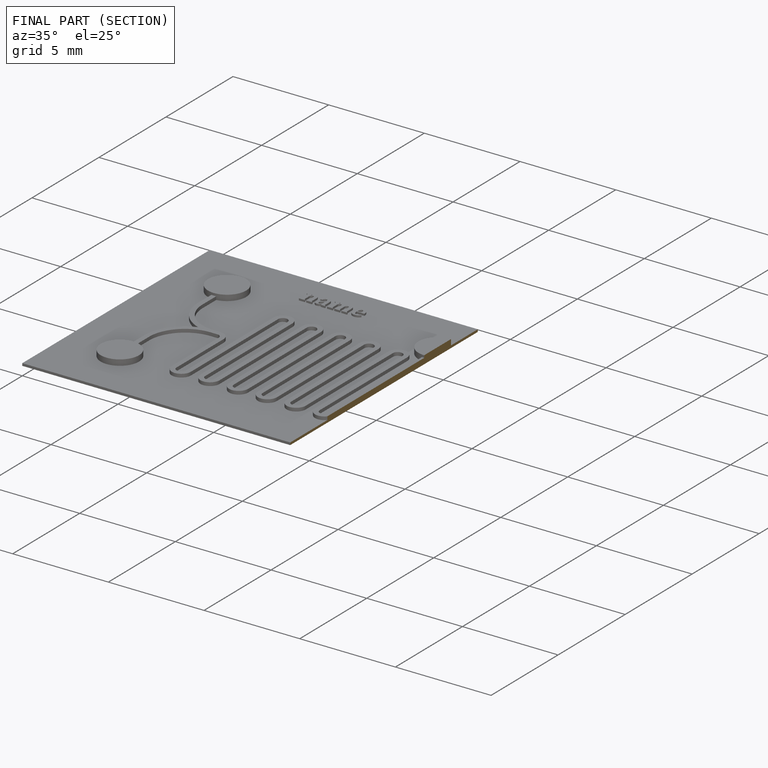
[diagram: finished part — half-section view (interior)]
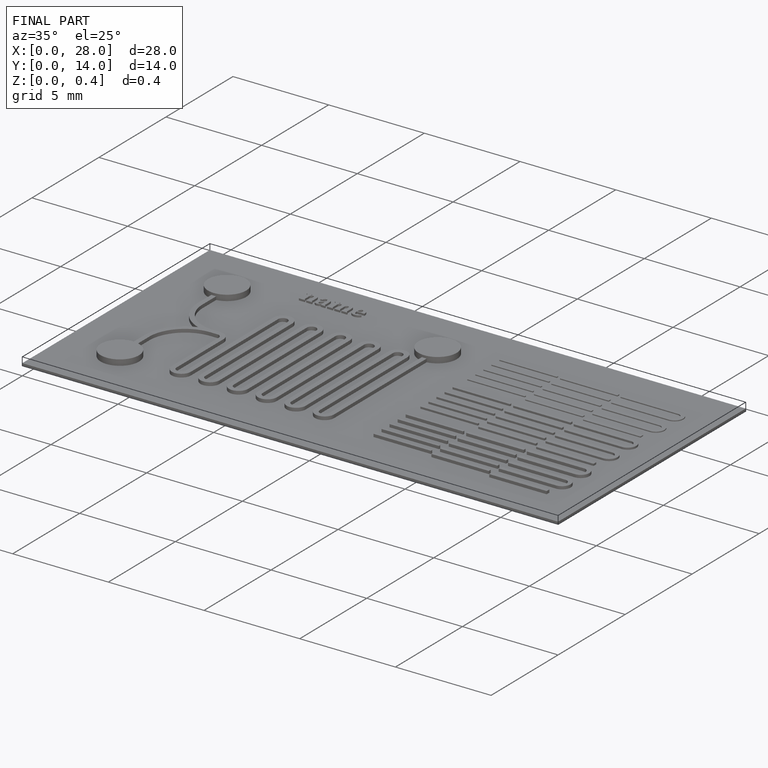
[diagram: finished part — iso view with bounding-box wireframe]
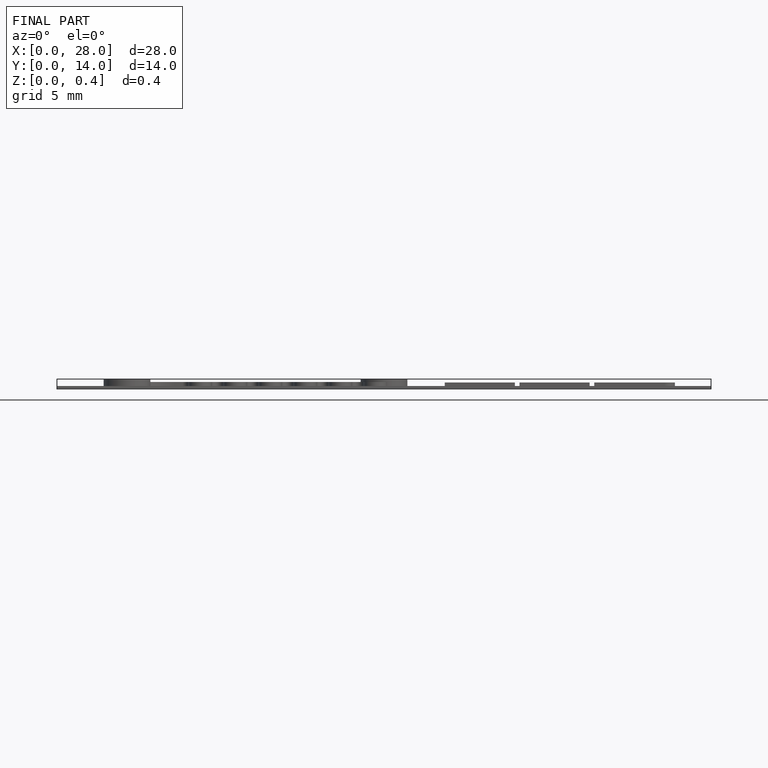
[diagram: finished part — front view with bounding-box wireframe]
